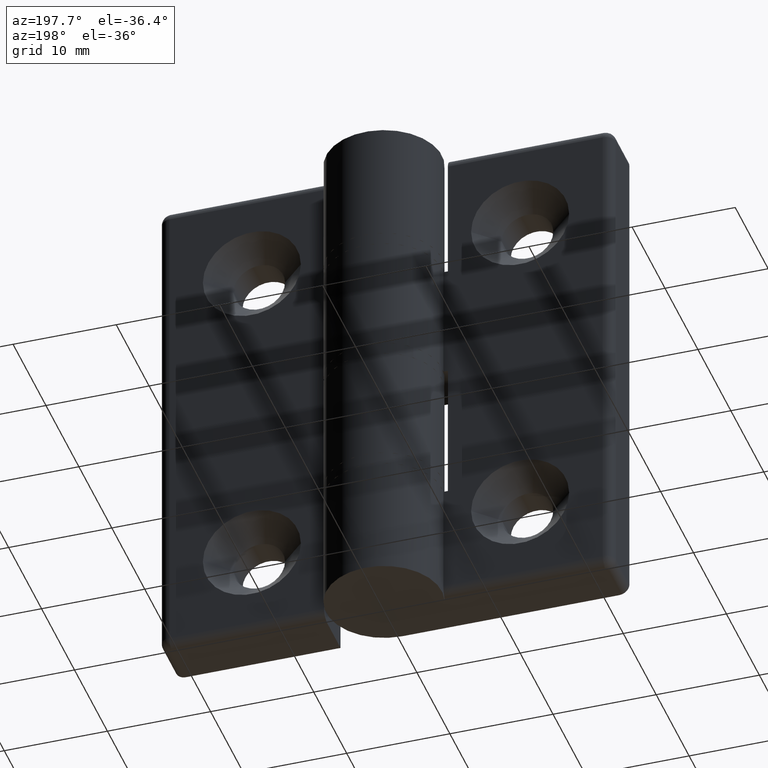
[diagram: clean part render]
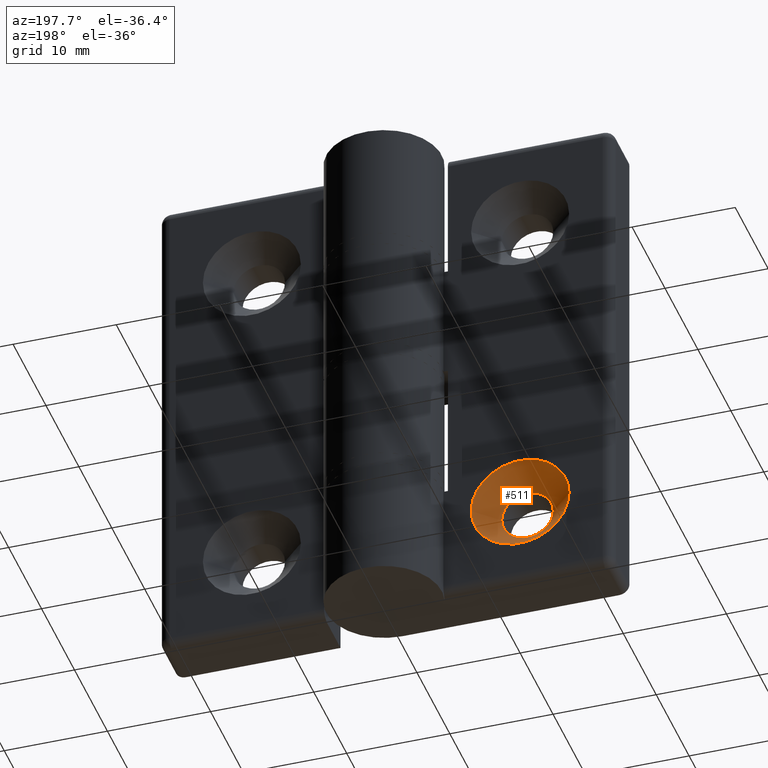
[diagram: same view with one face highlighted and labeled with its STEP entity id]
A machine part, auxiliary view. The second image highlights one B-rep face of the part: STEP entity #511.
In plain terms, the highlighted conical surface has half-angle 45 deg.
Its self-contained STEP definition (entity closure, byte-faithful):
#47=CONICAL_SURFACE('',#560,3.625,45.);
#51=FACE_BOUND('',#131,.T.);
#95=FACE_OUTER_BOUND('',#130,.T.);
#130=EDGE_LOOP('',(#411));
#131=EDGE_LOOP('',(#412));
#241=CIRCLE('',#558,4.75);
#243=CIRCLE('',#561,2.5);
#281=VERTEX_POINT('',#855);
#283=VERTEX_POINT('',#860);
#334=EDGE_CURVE('',#281,#281,#241,.T.);
#336=EDGE_CURVE('',#283,#283,#243,.T.);
#411=ORIENTED_EDGE('',*,*,#334,.F.);
#412=ORIENTED_EDGE('',*,*,#336,.F.);
#511=ADVANCED_FACE('',(#95,#51),#47,.F.);
#558=AXIS2_PLACEMENT_3D('',#856,#670,#671);
#560=AXIS2_PLACEMENT_3D('',#859,#674,#675);
#561=AXIS2_PLACEMENT_3D('',#861,#676,#677);
#670=DIRECTION('center_axis',(1.26161707343768E-16,-1.,0.));
#671=DIRECTION('ref_axis',(1.,1.26161707343768E-16,0.));
#674=DIRECTION('center_axis',(-1.26161707343768E-16,1.,0.));
#675=DIRECTION('ref_axis',(1.,1.26161707343768E-16,0.));
#676=DIRECTION('center_axis',(-1.26161707343768E-16,1.,0.));
#677=DIRECTION('ref_axis',(1.,1.26161707343768E-16,0.));
#855=CARTESIAN_POINT('',(-8.25,5.,-41.));
#856=CARTESIAN_POINT('Origin',(-13.,5.,-41.));
#859=CARTESIAN_POINT('Origin',(-13.,3.875,-41.));
#860=CARTESIAN_POINT('',(-10.5,2.75,-41.));
#861=CARTESIAN_POINT('Origin',(-13.,2.75,-41.));